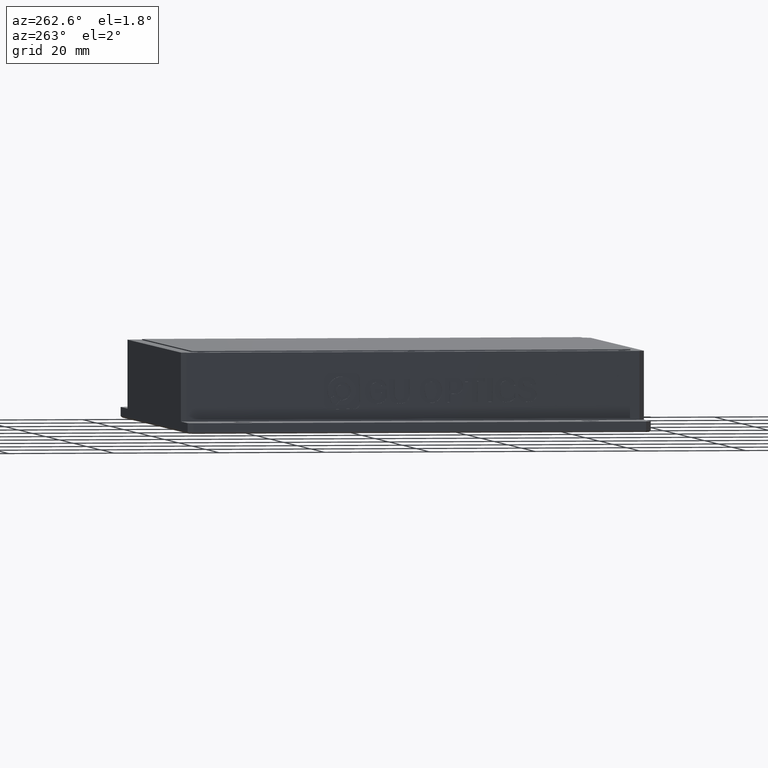
[diagram: clean part render]
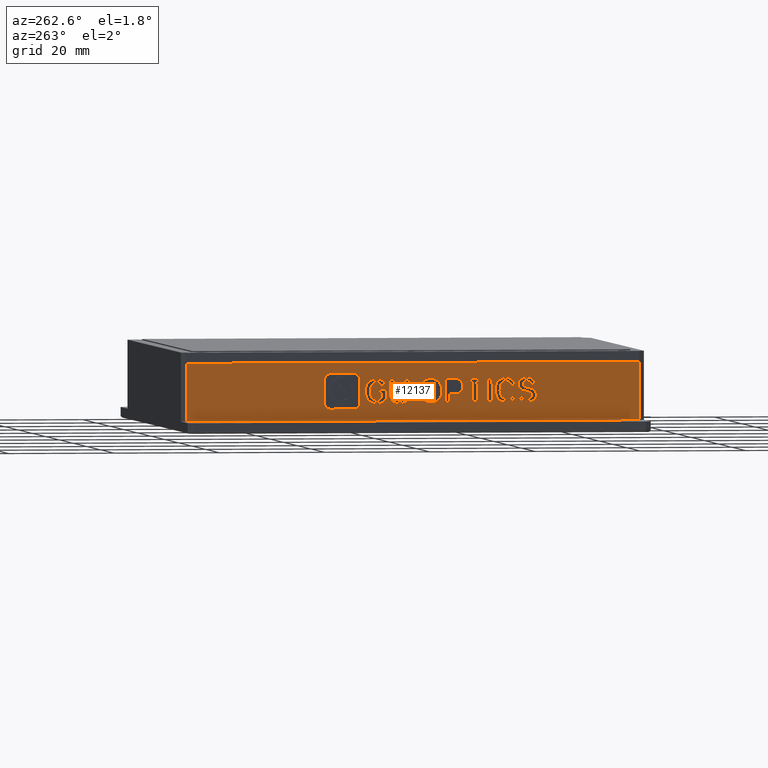
[diagram: same view with one face highlighted and labeled with its STEP entity id]
A machine part, auxiliary view. The second image highlights one B-rep face of the part: STEP entity #12137.
In plain terms, the highlighted planar face has unit normal (1, 0, 0).
Its self-contained STEP definition (entity closure, byte-faithful):
#28 = LINE ( 'NONE', #7429, #7509 ) ;
#66 = EDGE_CURVE ( 'NONE', #14311, #9478, #1452, .T. ) ;
#70 = DIRECTION ( 'NONE',  ( -0.0000000000000000000, 0.9999680015359180300, -0.007999744012287224700 ) ) ;
#138 = VERTEX_POINT ( 'NONE', #3566 ) ;
#154 = B_SPLINE_CURVE_WITH_KNOTS ( 'NONE', 3,
 ( #14165, #4656, #418, #10161 ),
 .UNSPECIFIED., .F., .F.,
 ( 4, 4 ),
 ( 12.59392528419546100, 14.69291283156137100 ),
 .UNSPECIFIED. ) ;
#184 = CARTESIAN_POINT ( 'NONE',  ( -22.94768995799924800, -1.639577004440180500, 3.889150275221808800 ) ) ;
#206 = VECTOR ( 'NONE', #15634, 1000.000000000000000 ) ;
#278 = VERTEX_POINT ( 'NONE', #12421 ) ;
#292 = CARTESIAN_POINT ( 'NONE',  ( -22.94768995799924800, -18.30164577376865900, 7.999318265200891200 ) ) ;
#305 = VERTEX_POINT ( 'NONE', #6980 ) ;
#374 = CARTESIAN_POINT ( 'NONE',  ( -22.94768995799924800, -20.74120048373965400, 5.716435448245434300 ) ) ;
#381 = CARTESIAN_POINT ( 'NONE',  ( -22.94768995799924800, -22.06281476387886200, 4.052536177297312700 ) ) ;
#418 = CARTESIAN_POINT ( 'NONE',  ( -22.94768995799924800, -23.19135528717914600, 3.705739162131031200 ) ) ;
#430 = VERTEX_POINT ( 'NONE', #15088 ) ;
#450 = CARTESIAN_POINT ( 'NONE',  ( -22.94768995799924800, 12.22207042947047700, 2.237126391415649600 ) ) ;
#476 = VERTEX_POINT ( 'NONE', #12991 ) ;
#502 = CARTESIAN_POINT ( 'NONE',  ( -22.94768995799924800, -25.93355536944080000, 3.476505935010713700 ) ) ;
#583 = ORIENTED_EDGE ( 'NONE', *, *, #12912, .F. ) ;
#591 = LINE ( 'NONE', #2695, #14385 ) ;
#639 = DIRECTION ( 'NONE',  ( -0.0000000000000000000, 0.9999680015359181400, -0.007999744012288772000 ) ) ;
#663 = B_SPLINE_CURVE_WITH_KNOTS ( 'NONE', 3,
 ( #14288, #4772, #7547, #17001 ),
 .UNSPECIFIED., .F., .F.,
 ( 4, 4 ),
 ( 10.44852967244660900, 13.93137289659548000 ),
 .UNSPECIFIED. ) ;
#670 = CARTESIAN_POINT ( 'NONE',  ( -22.94768995799924800, -19.25538161490458900, 3.506804154233905000 ) ) ;
#722 = CARTESIAN_POINT ( 'NONE',  ( -22.94768995799924800, -25.16435889085193300, 6.882089440505084500 ) ) ;
#750 = VECTOR ( 'NONE', #13528, 999.9999999999998900 ) ;
#761 = VERTEX_POINT ( 'NONE', #6722 ) ;
#782 = B_SPLINE_CURVE_WITH_KNOTS ( 'NONE', 3,
 ( #5970, #14084, #1775, #11438 ),
 .UNSPECIFIED., .F., .F.,
 ( 4, 4 ),
 ( 8.981940638558858900, 11.22742579819857100 ),
 .UNSPECIFIED. ) ;
#827 = ORIENTED_EDGE ( 'NONE', *, *, #2792, .F. ) ;
#833 = ORIENTED_EDGE ( 'NONE', *, *, #6875, .F. ) ;
#853 = CARTESIAN_POINT ( 'NONE',  ( -22.94768995799924800, -13.10137951332007100, 7.957716135117300900 ) ) ;
#862 = EDGE_CURVE ( 'NONE', #761, #2066, #4576, .T. ) ;
#904 = VERTEX_POINT ( 'NONE', #11830 ) ;
#906 = CARTESIAN_POINT ( 'NONE',  ( -22.94768995799924800, -13.60786519895299000, 6.496604858561774200 ) ) ;
#929 = EDGE_CURVE ( 'NONE', #11982, #4151, #1465, .T. ) ;
#934 = CARTESIAN_POINT ( 'NONE',  ( -22.94768995799924800, -48.20007636502477800, 10.99999999999545100 ) ) ;
#955 = VECTOR ( 'NONE', #5146, 1000.000000000000100 ) ;
#956 = CARTESIAN_POINT ( 'NONE',  ( -22.94768995799924800, -19.21938276684926100, 8.006660161145539700 ) ) ;
#989 = VERTEX_POINT ( 'NONE', #3172 ) ;
#1001 = CARTESIAN_POINT ( 'NONE',  ( -22.94768995799924800, -21.77666772790087200, 8.089911147778529700 ) ) ;
#1078 = CARTESIAN_POINT ( 'NONE',  ( -22.94768995799924800, 11.46808140681605400, 8.954538657982539000 ) ) ;
#1115 = EDGE_CURVE ( 'NONE', #7987, #15405, #15379, .T. ) ;
#1183 = CARTESIAN_POINT ( 'NONE',  ( -22.94768995799924800, -16.40470214833022000, 3.483998718501311500 ) ) ;
#1249 = VERTEX_POINT ( 'NONE', #12260 ) ;
#1274 = CARTESIAN_POINT ( 'NONE',  ( -22.94768995799924800, 4.089863074474693300, 3.292235736376156300 ) ) ;
#1349 = CARTESIAN_POINT ( 'NONE',  ( -22.94768995799924800, 3.938739462543481300, 5.560857733304914100 ) ) ;
#1368 = CARTESIAN_POINT ( 'NONE',  ( -22.94768995799924800, -27.50871426748807000, 6.733397064999246100 ) ) ;
#1403 = CARTESIAN_POINT ( 'NONE',  ( -22.94768995799924800, 1.743760809443585500, 4.552803349101332700 ) ) ;
#1419 = DIRECTION ( 'NONE',  ( -0.0000000000000000000, 0.007999744012310992100, 0.9999680015359179200 ) ) ;
#1423 = CARTESIAN_POINT ( 'NONE',  ( -22.94768995799924800, 0.9009166064194006300, 6.589843627267449700 ) ) ;
#1442 = CARTESIAN_POINT ( 'NONE',  ( -22.94768995799924800, -21.84038802528186800, 7.441562938396749900 ) ) ;
#1452 = B_SPLINE_CURVE_WITH_KNOTS ( 'NONE', 3,
 ( #4246, #4629, #4300, #4221 ),
 .UNSPECIFIED., .F., .F.,
 ( 4, 4 ),
 ( 18.70624679682389100, 20.57687147650628000 ),
 .UNSPECIFIED. ) ;
#1455 = VERTEX_POINT ( 'NONE', #1423 ) ;
#1465 = LINE ( 'NONE', #15157, #12043 ) ;
#1486 = DIRECTION ( 'NONE',  ( -0.0000000000000000000, 0.9999680015359180300, -0.007999744012288144100 ) ) ;
#1527 = EDGE_CURVE ( 'NONE', #5468, #989, #11130, .T. ) ;
#1569 = CARTESIAN_POINT ( 'NONE',  ( -22.94768995799924800, 0.2653558731883498600, 5.255350364981936200 ) ) ;
#1623 = CARTESIAN_POINT ( 'NONE',  ( -22.94768995799924800, -1.001712072362520600, 3.884047355765182900 ) ) ;
#1660 = VERTEX_POINT ( 'NONE', #6961 ) ;
#1669 = CARTESIAN_POINT ( 'NONE',  ( -22.94768995799924800, 1.829080415658211200, 7.901065162630054300 ) ) ;
#1711 = CARTESIAN_POINT ( 'NONE',  ( -22.94768995799924800, -7.619092747908499800, 3.329990234038454800 ) ) ;
#1738 = CARTESIAN_POINT ( 'NONE',  ( -22.94768995799924800, 5.977385331079119600, 8.582655682172934100 ) ) ;
#1775 = CARTESIAN_POINT ( 'NONE',  ( -22.94768995799924800, -2.303707077658539800, 3.866352627233525600 ) ) ;
#1785 = ORIENTED_EDGE ( 'NONE', *, *, #17214, .F. ) ;
#1805 = CARTESIAN_POINT ( 'NONE',  ( -22.94768995799924800, 6.343050524364456600, 2.284158550656499600 ) ) ;
#1818 = CARTESIAN_POINT ( 'NONE',  ( -22.94768995799924800, 4.876113252891968800, 5.574289645296999200 ) ) ;
#1912 = ORIENTED_EDGE ( 'NONE', *, *, #2107, .F. ) ;
#1918 = CARTESIAN_POINT ( 'NONE',  ( -22.94768995799924800, -27.09198233498444400, 3.485773350735066300 ) ) ;
#2018 = DIRECTION ( 'NONE',  ( -0.0000000000000000000, -0.007999744012269867000, -0.9999680015359182500 ) ) ;
#2025 = CARTESIAN_POINT ( 'NONE',  ( -22.94768995799924800, -23.55817751336104100, 5.069182390406715500 ) ) ;
#2026 = EDGE_CURVE ( 'NONE', #6962, #4714, #3153, .T. ) ;
#2051 = ORIENTED_EDGE ( 'NONE', *, *, #2026, .F. ) ;
#2066 = VERTEX_POINT ( 'NONE', #6754 ) ;
#2069 = B_SPLINE_CURVE_WITH_KNOTS ( 'NONE', 3,
 ( #13096, #14467, #6341, #15848 ),
 .UNSPECIFIED., .F., .F.,
 ( 4, 4 ),
 ( 13.34376593822674000, 15.01173668050508100 ),
 .UNSPECIFIED. ) ;
#2096 = EDGE_CURVE ( 'NONE', #4514, #4528, #11975, .T. ) ;
#2107 = EDGE_CURVE ( 'NONE', #13227, #9956, #11550, .T. ) ;
#2142 = ORIENTED_EDGE ( 'NONE', *, *, #9980, .F. ) ;
#2211 = CARTESIAN_POINT ( 'NONE',  ( -22.94768995799924800, 2.331720902539359900, 7.269116969289051200 ) ) ;
#2241 = CARTESIAN_POINT ( 'NONE',  ( -22.94768995799924800, -25.77932493426504800, 8.121932405429440400 ) ) ;
#2247 = ORIENTED_EDGE ( 'NONE', *, *, #3009, .F. ) ;
#2251 = VERTEX_POINT ( 'NONE', #1368 ) ;
#2281 = VERTEX_POINT ( 'NONE', #4512 ) ;
#2291 = CARTESIAN_POINT ( 'NONE',  ( -22.94768995799924800, -26.76859333226639500, 8.101735864039426400 ) ) ;
#2307 = DIRECTION ( 'NONE',  ( 0.0000000000000000000, 0.0000000000000000000, -1.000000000000000000 ) ) ;
#2330 = ORIENTED_EDGE ( 'NONE', *, *, #16014, .F. ) ;
#2381 = CARTESIAN_POINT ( 'NONE',  ( -22.94768995799924800, -24.61117545668958000, 4.414693057905502400 ) ) ;
#2465 = CARTESIAN_POINT ( 'NONE',  ( -22.94768995799924800, -9.636125337484150700, 4.197113703405398700 ) ) ;
#2474 = VECTOR ( 'NONE', #16984, 999.9999999999998900 ) ;
#2494 = DIRECTION ( 'NONE',  ( -0.0000000000000000000, -0.9999680015359181400, 0.007999744012291240500 ) ) ;
#2501 = VERTEX_POINT ( 'NONE', #17608 ) ;
#2521 = CARTESIAN_POINT ( 'NONE',  ( -22.94768995799924800, 4.876113252891968800, 5.574289645296999200 ) ) ;
#2551 = EDGE_CURVE ( 'NONE', #989, #15002, #10740, .T. ) ;
#2552 = DIRECTION ( 'NONE',  ( -0.0000000000000000000, -0.007999744012294092400, -0.9999680015359180300 ) ) ;
#2555 = FACE_BOUND ( 'NONE', #16971, .T. ) ;
#2565 = VECTOR ( 'NONE', #4089, 1000.000000000000000 ) ;
#2575 = CARTESIAN_POINT ( 'NONE',  ( -22.94768995799924800, -27.05863813426918800, 6.010965990968905700 ) ) ;
#2609 = EDGE_LOOP ( 'NONE', ( #12905, #12191, #5649, #9832, #827, #4078, #12177, #10864 ) ) ;
#2643 = CARTESIAN_POINT ( 'NONE',  ( -22.94768995799924800, -23.55817751336104100, 5.069182390406715500 ) ) ;
#2655 = EDGE_CURVE ( 'NONE', #14078, #10836, #6991, .T. ) ;
#2690 = ORIENTED_EDGE ( 'NONE', *, *, #14512, .F. ) ;
#2695 = CARTESIAN_POINT ( 'NONE',  ( -22.94768995799924800, 5.970923428638514000, 7.774917877092526000 ) ) ;
#2717 = B_SPLINE_CURVE_WITH_KNOTS ( 'NONE', 3,
 ( #9357, #7986, #16095, #1001 ),
 .UNSPECIFIED., .F., .F.,
 ( 4, 4 ),
 ( 18.89088792629318900, 20.98987547365909000 ),
 .UNSPECIFIED. ) ;
#2731 = LINE ( 'NONE', #14928, #6921 ) ;
#2734 = VERTEX_POINT ( 'NONE', #5395 ) ;
#2755 = DIRECTION ( 'NONE',  ( -0.0000000000000000000, 0.007999744012288218700, 0.9999680015359180300 ) ) ;
#2792 = EDGE_CURVE ( 'NONE', #11171, #15391, #591, .T. ) ;
#2831 = VERTEX_POINT ( 'NONE', #16598 ) ;
#2847 = CARTESIAN_POINT ( 'NONE',  ( -22.94768995799924800, -19.25538161490458900, 3.506804154233905000 ) ) ;
#2937 = CARTESIAN_POINT ( 'NONE',  ( -22.94768995799924800, -27.50871426748807000, 6.733397064999246100 ) ) ;
#2959 = ORIENTED_EDGE ( 'NONE', *, *, #12915, .F. ) ;
#2986 = B_SPLINE_CURVE_WITH_KNOTS ( 'NONE', 3,
 ( #381, #8757, #3222, #12813 ),
 .UNSPECIFIED., .F., .F.,
 ( 4, 4 ),
 ( 6.296962642097727600, 8.395950189463638600 ),
 .UNSPECIFIED. ) ;
#2987 = EDGE_CURVE ( 'NONE', #4050, #3069, #17305, .T. ) ;
#2995 = FACE_BOUND ( 'NONE', #10784, .T. ) ;
#3009 = EDGE_CURVE ( 'NONE', #9478, #9031, #4797, .T. ) ;
#3017 = CARTESIAN_POINT ( 'NONE',  ( -22.94768995799924800, 1.194391909789260800, 7.466593722064849300 ) ) ;
#3034 = ORIENTED_EDGE ( 'NONE', *, *, #14688, .F. ) ;
#3069 = VERTEX_POINT ( 'NONE', #17035 ) ;
#3087 = ORIENTED_EDGE ( 'NONE', *, *, #7294, .F. ) ;
#3130 = B_SPLINE_CURVE_WITH_KNOTS ( 'NONE', 3,
 ( #17129, #3421, #7688, #9052 ),
 .UNSPECIFIED., .F., .F.,
 ( 4, 4 ),
 ( 21.68361964961845000, 23.35159039189679900 ),
 .UNSPECIFIED. ) ;
#3148 = DIRECTION ( 'NONE',  ( -0.0000000000000000000, 0.007999744012294860900, 0.9999680015359180300 ) ) ;
#3153 = LINE ( 'NONE', #670, #13679 ) ;
#3171 = CARTESIAN_POINT ( 'NONE',  ( -22.94768995799924800, -22.72576207343064100, 6.611409838187356900 ) ) ;
#3172 = CARTESIAN_POINT ( 'NONE',  ( -22.94768995799924800, -26.68483711572139300, 4.759301230187772600 ) ) ;
#3175 = CARTESIAN_POINT ( 'NONE',  ( -22.94768995799924800, -1.624963302249680300, 3.282037198473183500 ) ) ;
#3185 = CARTESIAN_POINT ( 'NONE',  ( -22.94768995799924800, -3.501767820911990500, 7.880919241578040700 ) ) ;
#3198 = FACE_BOUND ( 'NONE', #2609, .T. ) ;
#3217 = CARTESIAN_POINT ( 'NONE',  ( -22.94768995799924500, -47.20007636502478500, -4.550179677487165000E-012 ) ) ;
#3222 = CARTESIAN_POINT ( 'NONE',  ( -22.94768995799924800, -20.77572501445081000, 4.656111184460862700 ) ) ;
#3241 = B_SPLINE_CURVE_WITH_KNOTS ( 'NONE', 3,
 ( #11471, #1805, #7438, #16885 ),
 .UNSPECIFIED., .F., .F.,
 ( 4, 4 ),
 ( 15.45386676080593000, 18.54464011296710900 ),
 .UNSPECIFIED. ) ;
#3262 = EDGE_CURVE ( 'NONE', #15789, #5800, #4632, .T. ) ;
#3316 = EDGE_CURVE ( 'NONE', #2251, #305, #3922, .T. ) ;
#3328 = CARTESIAN_POINT ( 'NONE',  ( -22.94768995799924800, -5.511490638988390400, 5.615528671802295000 ) ) ;
#3343 = CARTESIAN_POINT ( 'NONE',  ( -22.94768995799924800, 2.709524821660693700, 3.247361293481901600 ) ) ;
#3361 = CARTESIAN_POINT ( 'NONE',  ( -22.94768995799924800, 11.46808140681605400, 8.954538657982539000 ) ) ;
#3389 = LINE ( 'NONE', #12994, #6677 ) ;
#3415 = VECTOR ( 'NONE', #9350, 1000.000000000000000 ) ;
#3418 = CARTESIAN_POINT ( 'NONE',  ( -22.94768995799924800, -22.72576207343064100, 6.611409838187356900 ) ) ;
#3421 = CARTESIAN_POINT ( 'NONE',  ( -22.94768995799924800, -24.57780545907155900, 3.703079647450450800 ) ) ;
#3425 = VECTOR ( 'NONE', #6059, 1000.000000000000100 ) ;
#3426 = EDGE_CURVE ( 'NONE', #7782, #15647, #12067, .T. ) ;
#3456 = ORIENTED_EDGE ( 'NONE', *, *, #9397, .F. ) ;
#3461 = CARTESIAN_POINT ( 'NONE',  ( -22.94768995799924800, -23.12107576215641200, 4.367786013747370100 ) ) ;
#3566 = CARTESIAN_POINT ( 'NONE',  ( -22.94768995799924800, 7.204182370943215100, 8.988649850269517600 ) ) ;
#3569 = CARTESIAN_POINT ( 'NONE',  ( -22.94768995799924800, 0.8761350305691705300, 5.941183908113444500 ) ) ;
#3607 = EDGE_CURVE ( 'NONE', #9956, #14364, #17517, .T. ) ;
#3629 = VERTEX_POINT ( 'NONE', #14214 ) ;
#3710 = ORIENTED_EDGE ( 'NONE', *, *, #17789, .F. ) ;
#3744 = CARTESIAN_POINT ( 'NONE',  ( -22.94768995799924800, 5.970923428638514000, 7.774917877092526000 ) ) ;
#3823 = DIRECTION ( 'NONE',  ( -0.0000000000000000000, -0.9999680015359181400, 0.007999744012286412800 ) ) ;
#3835 = DIRECTION ( 'NONE',  ( -0.0000000000000000000, -0.007999744012300908200, -0.9999680015359180300 ) ) ;
#3882 = VERTEX_POINT ( 'NONE', #722 ) ;
#3922 = B_SPLINE_CURVE_WITH_KNOTS ( 'NONE', 3,
 ( #2937, #4200, #2291, #2241 ),
 .UNSPECIFIED., .F., .F.,
 ( 4, 4 ),
 ( 10.00782445367005900, 11.67579519594840000 ),
 .UNSPECIFIED. ) ;
#3950 = LINE ( 'NONE', #3361, #11267 ) ;
#3996 = CARTESIAN_POINT ( 'NONE',  ( -22.94768995799924800, 12.27575803629872600, 8.948077244946674100 ) ) ;
#3997 = LINE ( 'NONE', #11552, #206 ) ;
#4020 = LINE ( 'NONE', #4217, #4458 ) ;
#4050 = VERTEX_POINT ( 'NONE', #3217 ) ;
#4071 = CARTESIAN_POINT ( 'NONE',  ( -22.94768995799924800, -21.77666772790087200, 8.089911147778529700 ) ) ;
#4078 = ORIENTED_EDGE ( 'NONE', *, *, #17624, .F. ) ;
#4089 = DIRECTION ( 'NONE',  ( -0.0000000000000000000, 0.007999744012294746400, 0.9999680015359180300 ) ) ;
#4096 = VERTEX_POINT ( 'NONE', #17478 ) ;
#4114 = DIRECTION ( 'NONE',  ( -0.0000000000000000000, 0.007999744012314949000, 0.9999680015359179200 ) ) ;
#4134 = CARTESIAN_POINT ( 'NONE',  ( -22.94768995799924800, 2.694911119470077200, 3.854474370230526900 ) ) ;
#4151 = VERTEX_POINT ( 'NONE', #16297 ) ;
#4200 = CARTESIAN_POINT ( 'NONE',  ( -22.94768995799924800, -27.34521787679034700, 7.638993451440748000 ) ) ;
#4216 = CARTESIAN_POINT ( 'NONE',  ( -22.94768995799924800, -16.37372639535238200, 7.355967840727585900 ) ) ;
#4217 = CARTESIAN_POINT ( 'NONE',  ( -22.94768995799924800, 2.999356434163075000, 5.296271067438695500 ) ) ;
#4221 = CARTESIAN_POINT ( 'NONE',  ( -22.94768995799924800, 0.8627401103625497200, 4.266818882285846800 ) ) ;
#4236 = ORIENTED_EDGE ( 'NONE', *, *, #3607, .F. ) ;
#4246 = CARTESIAN_POINT ( 'NONE',  ( -22.94768995799924800, 2.709524821660693700, 3.247361293481901600 ) ) ;
#4270 = CARTESIAN_POINT ( 'NONE',  ( -22.94768995799924800, 3.528891896005859100, 7.189567108137567600 ) ) ;
#4297 = CARTESIAN_POINT ( 'NONE',  ( -22.94768995799924800, -0.3366698595925806700, 3.229869046302226800 ) ) ;
#4300 = CARTESIAN_POINT ( 'NONE',  ( -22.94768995799924800, 1.117906526022295300, 3.594988676884880900 ) ) ;
#4304 = ORIENTED_EDGE ( 'NONE', *, *, #7129, .F. ) ;
#4323 = LINE ( 'NONE', #15205, #7566 ) ;
#4368 = CARTESIAN_POINT ( 'NONE',  ( -22.94768995799924800, -25.80398482661082200, 7.473271712807380700 ) ) ;
#4372 = VERTEX_POINT ( 'NONE', #11533 ) ;
#4420 = AXIS2_PLACEMENT_3D ( 'NONE', #934, #10650, #2307 ) ;
#4428 = CARTESIAN_POINT ( 'NONE',  ( -22.94768995799924800, -25.36130023620666300, 7.469730236084146200 ) ) ;
#4450 = LINE ( 'NONE', #2643, #10909 ) ;
#4458 = VECTOR ( 'NONE', #13760, 1000.000000000000000 ) ;
#4474 = CARTESIAN_POINT ( 'NONE',  ( -22.94768995799924800, -0.6510883543377303800, 7.858113805845449400 ) ) ;
#4485 = CARTESIAN_POINT ( 'NONE',  ( -22.94768995799924800, -0.6798324318378398100, 4.265104118336438400 ) ) ;
#4494 = EDGE_CURVE ( 'NONE', #12267, #15388, #10032, .T. ) ;
#4512 = CARTESIAN_POINT ( 'NONE',  ( -22.94768995799924800, 2.694911119470077200, 3.854474370230526900 ) ) ;
#4514 = VERTEX_POINT ( 'NONE', #7323 ) ;
#4528 = VERTEX_POINT ( 'NONE', #6381 ) ;
#4576 = LINE ( 'NONE', #1403, #8663 ) ;
#4580 = VECTOR ( 'NONE', #13455, 1000.000000000000000 ) ;
#4599 = CARTESIAN_POINT ( 'NONE',  ( -22.94768995799924800, 6.396738131192705600, 8.995109404187523700 ) ) ;
#4628 = EDGE_CURVE ( 'NONE', #3882, #4096, #10985, .T. ) ;
#4629 = CARTESIAN_POINT ( 'NONE',  ( -22.94768995799924800, 1.733379746283446600, 3.255170454084919100 ) ) ;
#4632 = B_SPLINE_CURVE_WITH_KNOTS ( 'NONE', 3,
 ( #5626, #6251, #5811, #5512 ),
 .UNSPECIFIED., .F., .F.,
 ( 4, 4 ),
 ( 4.197975094731819300, 6.296962642097727600 ),
 .UNSPECIFIED. ) ;
#4644 = EDGE_CURVE ( 'NONE', #12240, #3629, #6305, .T. ) ;
#4656 = CARTESIAN_POINT ( 'NONE',  ( -22.94768995799924800, -22.62072195169673700, 3.450003267668762400 ) ) ;
#4681 = CARTESIAN_POINT ( 'NONE',  ( -22.94768995799924800, -25.14809321340038300, 7.272466672808718600 ) ) ;
#4714 = VERTEX_POINT ( 'NONE', #2847 ) ;
#4749 = ORIENTED_EDGE ( 'NONE', *, *, #929, .F. ) ;
#4760 = CARTESIAN_POINT ( 'NONE',  ( -22.94768995799924800, -11.21100679714044000, 3.442449155691790000 ) ) ;
#4772 = CARTESIAN_POINT ( 'NONE',  ( -22.94768995799924800, -9.586765640603740500, 7.127045149911501700 ) ) ;
#4783 = CARTESIAN_POINT ( 'NONE',  ( -22.94768995799924800, -27.64113220432984300, 4.829744297841238600 ) ) ;
#4797 = LINE ( 'NONE', #7948, #8458 ) ;
#4867 = CARTESIAN_POINT ( 'NONE',  ( -22.94768995799924800, -26.41324196671394400, 5.350069291839767000 ) ) ;
#4868 = ORIENTED_EDGE ( 'NONE', *, *, #13256, .F. ) ;
#4920 = EDGE_CURVE ( 'NONE', #2066, #2281, #8964, .T. ) ;
#4969 = CARTESIAN_POINT ( 'NONE',  ( -22.94768995799924800, 2.694911119470077200, 3.854474370230526900 ) ) ;
#5011 = EDGE_CURVE ( 'NONE', #4714, #5609, #10577, .T. ) ;
#5015 = CARTESIAN_POINT ( 'NONE',  ( -22.94768995799924800, 0.2861179995086293200, 7.850616155014678000 ) ) ;
#5069 = CARTESIAN_POINT ( 'NONE',  ( -22.94768995799924800, 0.2653558731883498600, 5.255350364981936200 ) ) ;
#5080 = ORIENTED_EDGE ( 'NONE', *, *, #66, .F. ) ;
#5084 = CARTESIAN_POINT ( 'NONE',  ( -22.94768995799924800, 2.200276920469491400, 3.844376099535537200 ) ) ;
#5088 = CARTESIAN_POINT ( 'NONE',  ( -22.94768995799924800, -25.16435889085193300, 6.882089440505084500 ) ) ;
#5123 = B_SPLINE_CURVE_WITH_KNOTS ( 'NONE', 3,
 ( #17410, #10804, #2465, #12131 ),
 .UNSPECIFIED., .F., .F.,
 ( 4, 4 ),
 ( 0.0000000000000000000, 3.482843224148870000 ),
 .UNSPECIFIED. ) ;
#5133 = DIRECTION ( 'NONE',  ( -0.0000000000000000000, -0.9999680015359181400, 0.007999744012289221300 ) ) ;
#5146 = DIRECTION ( 'NONE',  ( -0.0000000000000000000, -0.9999680015359180300, 0.007999744012288003600 ) ) ;
#5165 = ORIENTED_EDGE ( 'NONE', *, *, #4628, .F. ) ;
#5174 = CARTESIAN_POINT ( 'NONE',  ( -22.94768995799924800, -5.588080183835359100, 4.164729342176208600 ) ) ;
#5186 = VERTEX_POINT ( 'NONE', #6504 ) ;
#5248 = CARTESIAN_POINT ( 'NONE',  ( -22.94768995799924800, 11.41439379998780600, 2.243587804451515000 ) ) ;
#5263 = CARTESIAN_POINT ( 'NONE',  ( -22.94768995799924800, -2.564561467065740200, 7.873421590747271100 ) ) ;
#5307 = CARTESIAN_POINT ( 'NONE',  ( -22.94768995799924800, -25.87887761666713600, 5.443573330585898900 ) ) ;
#5353 = CARTESIAN_POINT ( 'NONE',  ( -22.94768995799924800, -15.46749579448430900, 3.476501067670540100 ) ) ;
#5395 = CARTESIAN_POINT ( 'NONE',  ( -22.94768995799924800, 1.877061681796417200, 6.582034466664431700 ) ) ;
#5396 = CARTESIAN_POINT ( 'NONE',  ( -22.94768995799924800, -3.522195074227109300, 5.327512577190973700 ) ) ;
#5425 = CARTESIAN_POINT ( 'NONE',  ( -22.94768995799924800, -18.33764462182398000, 3.499462258289256500 ) ) ;
#5427 = VERTEX_POINT ( 'NONE', #3171 ) ;
#5435 = DIRECTION ( 'NONE',  ( -0.0000000000000000000, -0.9999680015359180300, 0.007999744012288133700 ) ) ;
#5468 = VERTEX_POINT ( 'NONE', #10255 ) ;
#5470 = VERTEX_POINT ( 'NONE', #7514 ) ;
#5512 = CARTESIAN_POINT ( 'NONE',  ( -22.94768995799924800, -21.84038802528186800, 7.441562938396749900 ) ) ;
#5518 = CARTESIAN_POINT ( 'NONE',  ( -22.94768995799924800, -25.93355536944080000, 3.476505935010713700 ) ) ;
#5527 = EDGE_CURVE ( 'NONE', #14708, #16658, #3130, .T. ) ;
#5530 = CARTESIAN_POINT ( 'NONE',  ( -22.94768995799924800, -26.68193569423335600, 5.121978916196404400 ) ) ;
#5542 = CARTESIAN_POINT ( 'NONE',  ( -22.94768995799924800, -7.581921844335110600, 7.976353180709999400 ) ) ;
#5546 = ORIENTED_EDGE ( 'NONE', *, *, #5985, .F. ) ;
#5585 = LINE ( 'NONE', #4760, #7484 ) ;
#5609 = VERTEX_POINT ( 'NONE', #956 ) ;
#5614 = CARTESIAN_POINT ( 'NONE',  ( -22.94768995799924800, -24.12244826174526200, 6.120241672137076700 ) ) ;
#5626 = CARTESIAN_POINT ( 'NONE',  ( -22.94768995799924800, -20.74120048373965400, 5.716435448245434300 ) ) ;
#5637 = CARTESIAN_POINT ( 'NONE',  ( -22.94768995799924800, -26.68483711572139300, 4.759301230187772600 ) ) ;
#5649 = ORIENTED_EDGE ( 'NONE', *, *, #10444, .F. ) ;
#5656 = EDGE_CURVE ( 'NONE', #9897, #10139, #5123, .T. ) ;
#5659 = ORIENTED_EDGE ( 'NONE', *, *, #3316, .F. ) ;
#5759 = ORIENTED_EDGE ( 'NONE', *, *, #11647, .T. ) ;
#5800 = VERTEX_POINT ( 'NONE', #1442 ) ;
#5811 = CARTESIAN_POINT ( 'NONE',  ( -22.94768995799924800, -21.11148533573321700, 7.407621028306308200 ) ) ;
#5908 = CARTESIAN_POINT ( 'NONE',  ( -22.94768995799924800, -2.965986101402000100, 3.223097115893985200 ) ) ;
#5970 = CARTESIAN_POINT ( 'NONE',  ( -22.94768995799924800, -2.587165394914450600, 5.047930609663239900 ) ) ;
#5985 = EDGE_CURVE ( 'NONE', #9031, #278, #7946, .T. ) ;
#5998 = CARTESIAN_POINT ( 'NONE',  ( -22.94768995799924800, -25.77932493426504800, 8.121932405429440400 ) ) ;
#6024 = CARTESIAN_POINT ( 'NONE',  ( -22.94768995799924800, -3.522195074227109300, 5.327512577190973700 ) ) ;
#6059 = DIRECTION ( 'NONE',  ( -0.0000000000000000000, -0.9999680015359181400, 0.007999744012281980600 ) ) ;
#6077 = ORIENTED_EDGE ( 'NONE', *, *, #11712, .F. ) ;
#6124 = ORIENTED_EDGE ( 'NONE', *, *, #9753, .F. ) ;
#6129 = ORIENTED_EDGE ( 'NONE', *, *, #14853, .F. ) ;
#6239 = DIRECTION ( 'NONE',  ( -0.0000000000000000000, -0.9999680015359181400, 0.007999744012283359700 ) ) ;
#6243 = ORIENTED_EDGE ( 'NONE', *, *, #9233, .F. ) ;
#6251 = CARTESIAN_POINT ( 'NONE',  ( -22.94768995799924800, -20.74516979966568900, 6.832680583488553300 ) ) ;
#6299 = FACE_BOUND ( 'NONE', #11904, .T. ) ;
#6305 = LINE ( 'NONE', #4216, #2565 ) ;
#6339 = CARTESIAN_POINT ( 'NONE',  ( -22.94768995799924800, 3.004379529240566200, 5.924157952124076600 ) ) ;
#6341 = CARTESIAN_POINT ( 'NONE',  ( -22.94768995799924800, -26.46331910953836400, 7.213320215005396100 ) ) ;
#6366 = CARTESIAN_POINT ( 'NONE',  ( -22.94768995799924800, -25.14086667341842900, 6.532951721440753100 ) ) ;
#6378 = LINE ( 'NONE', #14731, #10037 ) ;
#6381 = CARTESIAN_POINT ( 'NONE',  ( -22.94768995799924800, -15.43652004150647100, 7.348470189896816300 ) ) ;
#6438 = CARTESIAN_POINT ( 'NONE',  ( -22.94768995799924800, -13.61282988594774900, 7.473217198597240000 ) ) ;
#6461 = VERTEX_POINT ( 'NONE', #292 ) ;
#6485 = FACE_BOUND ( 'NONE', #6826, .T. ) ;
#6504 = CARTESIAN_POINT ( 'NONE',  ( -22.94768995799924800, 4.876113252891968800, 5.574289645296999200 ) ) ;
#6517 = VERTEX_POINT ( 'NONE', #16923 ) ;
#6527 = EDGE_CURVE ( 'NONE', #14364, #13062, #5585, .T. ) ;
#6602 = EDGE_LOOP ( 'NONE', ( #15315, #10171, #2051, #10961 ) ) ;
#6677 = VECTOR ( 'NONE', #6239, 1000.000000000000100 ) ;
#6691 = EDGE_CURVE ( 'NONE', #2734, #1455, #11718, .T. ) ;
#6722 = CARTESIAN_POINT ( 'NONE',  ( -22.94768995799924800, 1.749788523536551300, 5.306267610723701000 ) ) ;
#6754 = CARTESIAN_POINT ( 'NONE',  ( -22.94768995799924800, 1.743760809443585500, 4.552803349101332700 ) ) ;
#6792 = CARTESIAN_POINT ( 'NONE',  ( -22.94768995799924800, 12.67991665718044700, 7.476548339599959000 ) ) ;
#6826 = EDGE_LOOP ( 'NONE', ( #11557, #14619, #17034, #16826, #14667, #9562, #5659, #13832, #8499, #5165, #8873, #11724, #11412, #17247 ) ) ;
#6875 = EDGE_CURVE ( 'NONE', #2281, #1249, #13750, .T. ) ;
#6887 = CARTESIAN_POINT ( 'NONE',  ( -22.94768995799924800, -5.564414202356940300, 7.122977026979561400 ) ) ;
#6897 = ORIENTED_EDGE ( 'NONE', *, *, #6527, .F. ) ;
#6921 = VECTOR ( 'NONE', #16256, 1000.000000000000100 ) ;
#6931 = EDGE_CURVE ( 'NONE', #4528, #14513, #12934, .T. ) ;
#6951 = VECTOR ( 'NONE', #15864, 1000.000000000000100 ) ;
#6961 = CARTESIAN_POINT ( 'NONE',  ( -22.94768995799924800, -26.61056831867768200, 6.726211897408766100 ) ) ;
#6962 = VERTEX_POINT ( 'NONE', #12537 ) ;
#6972 = ORIENTED_EDGE ( 'NONE', *, *, #2655, .F. ) ;
#6975 = VECTOR ( 'NONE', #16247, 1000.000000000000000 ) ;
#6977 = CARTESIAN_POINT ( 'NONE',  ( -22.94768995799924800, -25.87887761666713600, 5.443573330585898900 ) ) ;
#6980 = CARTESIAN_POINT ( 'NONE',  ( -22.94768995799924800, -25.77932493426504800, 8.121932405429440400 ) ) ;
#6991 = LINE ( 'NONE', #9758, #10182 ) ;
#7014 = LINE ( 'NONE', #12183, #17350 ) ;
#7094 = CARTESIAN_POINT ( 'NONE',  ( -22.94768995799924800, -15.46749579448430900, 3.476501067670540100 ) ) ;
#7129 = EDGE_CURVE ( 'NONE', #5800, #5427, #14498, .T. ) ;
#7133 = LINE ( 'NONE', #17340, #3415 ) ;
#7217 = LINE ( 'NONE', #12053, #14419 ) ;
#7232 = B_SPLINE_CURVE_WITH_KNOTS ( 'NONE', 3,
 ( #11409, #1738, #4599, #14110 ),
 .UNSPECIFIED., .F., .F.,
 ( 4, 4 ),
 ( 9.272320056483556200, 12.36309340864474000 ),
 .UNSPECIFIED. ) ;
#7286 = CARTESIAN_POINT ( 'NONE',  ( -22.94768995799924800, -13.60786519895299000, 6.496604858561774200 ) ) ;
#7294 = EDGE_CURVE ( 'NONE', #10984, #12386, #2717, .T. ) ;
#7323 = CARTESIAN_POINT ( 'NONE',  ( -22.94768995799924800, -14.05030155500737100, 7.337380442004822500 ) ) ;
#7367 = CARTESIAN_POINT ( 'NONE',  ( -22.94768995799924800, -24.24027099228948100, 7.683822141337160800 ) ) ;
#7395 = CARTESIAN_POINT ( 'NONE',  ( -22.94768995799924800, 2.805347174539861500, 7.893255028559004000 ) ) ;
#7404 = CARTESIAN_POINT ( 'NONE',  ( -22.94768995799924800, -12.09659500825722300, 5.019351534995607300 ) ) ;
#7429 = CARTESIAN_POINT ( 'NONE',  ( -22.94768995799924800, -17.75994488185159900, 7.367057588619572600 ) ) ;
#7438 = CARTESIAN_POINT ( 'NONE',  ( -22.94768995799924800, 5.930351702925520400, 2.703452162967892000 ) ) ;
#7484 = VECTOR ( 'NONE', #15646, 1000.000000000000100 ) ;
#7509 = VECTOR ( 'NONE', #16882, 1000.000000000000000 ) ;
#7514 = CARTESIAN_POINT ( 'NONE',  ( -22.94768995799924800, -17.75994488185159900, 7.367057588619572600 ) ) ;
#7533 = ORIENTED_EDGE ( 'NONE', *, *, #8166, .F. ) ;
#7547 = CARTESIAN_POINT ( 'NONE',  ( -22.94768995799924800, -8.884118357514861200, 7.903047143555981300 ) ) ;
#7566 = VECTOR ( 'NONE', #70, 1000.000000000000100 ) ;
#7574 = EDGE_CURVE ( 'NONE', #1455, #14096, #11316, .T. ) ;
#7597 = ORIENTED_EDGE ( 'NONE', *, *, #3262, .F. ) ;
#7599 = EDGE_CURVE ( 'NONE', #15391, #138, #7232, .T. ) ;
#7640 = CARTESIAN_POINT ( 'NONE',  ( -22.94768995799924800, 2.805347174539861500, 7.893255028559004000 ) ) ;
#7670 = CARTESIAN_POINT ( 'NONE',  ( -22.94768995799924800, -22.62254038999224900, 4.028903293732192000 ) ) ;
#7682 = VECTOR ( 'NONE', #5133, 999.9999999999998900 ) ;
#7688 = CARTESIAN_POINT ( 'NONE',  ( -22.94768995799924800, -25.17884409526134700, 3.428606440187572000 ) ) ;
#7725 = CARTESIAN_POINT ( 'NONE',  ( -22.94768995799924800, -13.64182073759565000, 5.492193191757352500 ) ) ;
#7732 = VERTEX_POINT ( 'NONE', #10286 ) ;
#7767 = DIRECTION ( 'NONE',  ( -0.0000000000000000000, 0.007999744012300906400, 0.9999680015359180300 ) ) ;
#7781 = CARTESIAN_POINT ( 'NONE',  ( -22.94768995799924800, -13.13806562981067900, 4.999572611394035500 ) ) ;
#7782 = VERTEX_POINT ( 'NONE', #5015 ) ;
#7798 = CARTESIAN_POINT ( 'NONE',  ( -22.94768995799924800, 1.883307939463691600, 4.077151776847096600 ) ) ;
#7946 = LINE ( 'NONE', #6339, #11543 ) ;
#7948 = CARTESIAN_POINT ( 'NONE',  ( -22.94768995799924800, 0.8761350305691705300, 5.941183908113444500 ) ) ;
#7957 = VECTOR ( 'NONE', #11857, 1000.000000000000100 ) ;
#7975 = CARTESIAN_POINT ( 'NONE',  ( -22.94768995799924800, -25.79221657149606600, 4.061440489443392600 ) ) ;
#7986 = CARTESIAN_POINT ( 'NONE',  ( -22.94768995799924800, -23.42724314180929900, 7.593594309273853100 ) ) ;
#7987 = VERTEX_POINT ( 'NONE', #9369 ) ;
#7988 = CARTESIAN_POINT ( 'NONE',  ( -22.94768995799924800, -7.619092747908499800, 3.329990234038454800 ) ) ;
#8100 = ORIENTED_EDGE ( 'NONE', *, *, #14990, .F. ) ;
#8166 = EDGE_CURVE ( 'NONE', #11359, #12603, #4323, .T. ) ;
#8234 = B_SPLINE_CURVE_WITH_KNOTS ( 'NONE', 3,
 ( #10785, #13461, #17510, #9468 ),
 .UNSPECIFIED., .F., .F.,
 ( 4, 4 ),
 ( 14.69291283156137100, 16.79190037892728100 ),
 .UNSPECIFIED. ) ;
#8240 = CARTESIAN_POINT ( 'NONE',  ( -22.94768995799924800, -19.83744833249671300, 7.216230397705815300 ) ) ;
#8247 = DIRECTION ( 'NONE',  ( -0.0000000000000000000, 0.007999744012287403300, 0.9999680015359180300 ) ) ;
#8261 = CARTESIAN_POINT ( 'NONE',  ( -22.94768995799924800, -12.09659500825722300, 5.019351534995607300 ) ) ;
#8281 = ORIENTED_EDGE ( 'NONE', *, *, #17446, .F. ) ;
#8356 = EDGE_CURVE ( 'NONE', #16658, #9105, #11601, .T. ) ;
#8367 = VERTEX_POINT ( 'NONE', #14296 ) ;
#8374 = ORIENTED_EDGE ( 'NONE', *, *, #5656, .F. ) ;
#8423 = EDGE_CURVE ( 'NONE', #4096, #1660, #2069, .T. ) ;
#8458 = VECTOR ( 'NONE', #8247, 1000.000000000000200 ) ;
#8499 = ORIENTED_EDGE ( 'NONE', *, *, #8423, .F. ) ;
#8571 = B_SPLINE_CURVE_WITH_KNOTS ( 'NONE', 3,
 ( #2025, #3461, #7670, #17113 ),
 .UNSPECIFIED., .F., .F.,
 ( 4, 4 ),
 ( 8.395950189463638600, 10.49493773682955000 ),
 .UNSPECIFIED. ) ;
#8663 = VECTOR ( 'NONE', #2018, 1000.000000000000000 ) ;
#8700 = VECTOR ( 'NONE', #16136, 1000.000000000000000 ) ;
#8757 = CARTESIAN_POINT ( 'NONE',  ( -22.94768995799924800, -21.21606111321267100, 4.101375068777422000 ) ) ;
#8799 = CARTESIAN_POINT ( 'NONE',  ( -22.94768995799924800, 1.749788523536551300, 5.306267610723701000 ) ) ;
#8833 = VERTEX_POINT ( 'NONE', #9993 ) ;
#8873 = ORIENTED_EDGE ( 'NONE', *, *, #14137, .F. ) ;
#8930 = CARTESIAN_POINT ( 'NONE',  ( -22.94768995799924800, -22.29597106719319300, 7.445207602732040200 ) ) ;
#8937 = EDGE_CURVE ( 'NONE', #5609, #6461, #17038, .T. ) ;
#8939 = CARTESIAN_POINT ( 'NONE',  ( -22.94768995799924800, -2.587165394914450600, 5.047930609663239900 ) ) ;
#8964 = B_SPLINE_CURVE_WITH_KNOTS ( 'NONE', 3,
 ( #13873, #7798, #5084, #4969 ),
 .UNSPECIFIED., .F., .F.,
 ( 4, 4 ),
 ( 7.482498718729557300, 9.353123398411947100 ),
 .UNSPECIFIED. ) ;
#8978 = CARTESIAN_POINT ( 'NONE',  ( -22.94768995799924800, -11.19844905944672100, 5.012166367405122000 ) ) ;
#9030 = CARTESIAN_POINT ( 'NONE',  ( -22.94768995799924800, 0.8627401103625497200, 4.266818882285846800 ) ) ;
#9031 = VERTEX_POINT ( 'NONE', #3569 ) ;
#9043 = VERTEX_POINT ( 'NONE', #14445 ) ;
#9052 = CARTESIAN_POINT ( 'NONE',  ( -22.94768995799924800, -25.93355536944080000, 3.476505935010713700 ) ) ;
#9105 = VERTEX_POINT ( 'NONE', #9328 ) ;
#9156 = CARTESIAN_POINT ( 'NONE',  ( -22.94768995799924800, -23.64349906651119700, 6.618751734131997500 ) ) ;
#9227 = CARTESIAN_POINT ( 'NONE',  ( -22.94768995799924800, 1.877061681796417200, 6.582034466664431700 ) ) ;
#9233 = EDGE_CURVE ( 'NONE', #15647, #8367, #9723, .T. ) ;
#9294 = VERTEX_POINT ( 'NONE', #184 ) ;
#9328 = CARTESIAN_POINT ( 'NONE',  ( -22.94768995799924800, -27.64113220432984300, 4.829744297841238600 ) ) ;
#9344 = EDGE_LOOP ( 'NONE', ( #1912, #10387, #9428, #8281, #3456, #6897, #4236 ) ) ;
#9346 = CARTESIAN_POINT ( 'NONE',  ( -22.94768995799924800, -25.16738345604670700, 4.070192940575509500 ) ) ;
#9350 = DIRECTION ( 'NONE',  ( -0.0000000000000000000, -0.0000000000000000000, 1.000000000000000000 ) ) ;
#9357 = CARTESIAN_POINT ( 'NONE',  ( -22.94768995799924800, -23.64349906651119700, 6.618751734131997500 ) ) ;
#9358 = EDGE_CURVE ( 'NONE', #3629, #5470, #28, .T. ) ;
#9369 = CARTESIAN_POINT ( 'NONE',  ( -22.94768995799924800, 12.64776291948794600, 3.457331128032961900 ) ) ;
#9397 = EDGE_CURVE ( 'NONE', #13062, #13541, #10712, .T. ) ;
#9416 = EDGE_CURVE ( 'NONE', #10139, #12800, #663, .T. ) ;
#9428 = ORIENTED_EDGE ( 'NONE', *, *, #4494, .F. ) ;
#9436 = B_SPLINE_CURVE_WITH_KNOTS ( 'NONE', 3,
 ( #5542, #15003, #6887, #16384 ),
 .UNSPECIFIED., .F., .F.,
 ( 4, 4 ),
 ( 6.965686448297741000, 10.44852967244660900 ),
 .UNSPECIFIED. ) ;
#9455 = CARTESIAN_POINT ( 'NONE',  ( -22.94768995799924800, -15.43652004150647100, 7.348470189896816300 ) ) ;
#9468 = CARTESIAN_POINT ( 'NONE',  ( -22.94768995799924800, -21.85289903650993500, 3.443860684347271200 ) ) ;
#9478 = VERTEX_POINT ( 'NONE', #9030 ) ;
#9521 = CARTESIAN_POINT ( 'NONE',  ( -22.94768995799924800, -27.63543936324203200, 5.541349433817935700 ) ) ;
#9562 = ORIENTED_EDGE ( 'NONE', *, *, #10861, .F. ) ;
#9576 = CARTESIAN_POINT ( 'NONE',  ( -22.94768995799924800, 0.2653558731883498600, 5.255350364981936200 ) ) ;
#9677 = CARTESIAN_POINT ( 'NONE',  ( -22.94768995799924800, 3.891082361261738200, 4.486583185797847800 ) ) ;
#9723 = B_SPLINE_CURVE_WITH_KNOTS ( 'NONE', 3,
 ( #9576, #16258, #4297, #13842 ),
 .UNSPECIFIED., .F., .F.,
 ( 4, 4 ),
 ( 20.20936643675743100, 22.45485159639714100 ),
 .UNSPECIFIED. ) ;
#9739 = CARTESIAN_POINT ( 'NONE',  ( -22.94768995799924800, 3.938739462543481300, 5.560857733304914100 ) ) ;
#9744 = VERTEX_POINT ( 'NONE', #12337 ) ;
#9753 = EDGE_CURVE ( 'NONE', #278, #476, #4020, .T. ) ;
#9756 = B_SPLINE_CURVE_WITH_KNOTS ( 'NONE', 3,
 ( #12167, #9521, #2575, #12219 ),
 .UNSPECIFIED., .F., .F.,
 ( 4, 4 ),
 ( 18.34767816506176900, 20.01564890734011100 ),
 .UNSPECIFIED. ) ;
#9758 = CARTESIAN_POINT ( 'NONE',  ( -22.94768995799924800, -0.6510883543377303800, 7.858113805845449400 ) ) ;
#9793 = CARTESIAN_POINT ( 'NONE',  ( -22.94768995799924800, 12.64130238692365500, 2.649764557495906600 ) ) ;
#9832 = ORIENTED_EDGE ( 'NONE', *, *, #7599, .F. ) ;
#9897 = VERTEX_POINT ( 'NONE', #1711 ) ;
#9907 = CARTESIAN_POINT ( 'NONE',  ( -22.94768995799924800, 12.64776291948794600, 3.457331128032961900 ) ) ;
#9954 = FACE_BOUND ( 'NONE', #12543, .T. ) ;
#9956 = VERTEX_POINT ( 'NONE', #10041 ) ;
#9962 = CARTESIAN_POINT ( 'NONE',  ( -22.94768995799924800, 11.41439379998780600, 2.243587804451515000 ) ) ;
#9980 = EDGE_CURVE ( 'NONE', #5427, #10984, #3997, .T. ) ;
#9993 = CARTESIAN_POINT ( 'NONE',  ( -22.94768995799924800, -21.85289903650993500, 3.443860684347271200 ) ) ;
#10032 = B_SPLINE_CURVE_WITH_KNOTS ( 'NONE', 3,
 ( #7404, #7781, #7725, #7286 ),
 .UNSPECIFIED., .F., .F.,
 ( 4, 4 ),
 ( 12.47790534418495900, 14.55755623488244900 ),
 .UNSPECIFIED. ) ;
#10037 = VECTOR ( 'NONE', #17480, 1000.000000000000100 ) ;
#10041 = CARTESIAN_POINT ( 'NONE',  ( -22.94768995799924800, -10.25739263950912900, 7.934964240126817000 ) ) ;
#10137 = CARTESIAN_POINT ( 'NONE',  ( -22.94768995799924800, 4.835996635034746300, 7.039773740280431900 ) ) ;
#10139 = VERTEX_POINT ( 'NONE', #16254 ) ;
#10143 = CARTESIAN_POINT ( 'NONE',  ( -22.94768995799924800, 7.150494764114967900, 2.277698996738493500 ) ) ;
#10161 = CARTESIAN_POINT ( 'NONE',  ( -22.94768995799924800, -23.56504240996695600, 4.211070314670080500 ) ) ;
#10171 = ORIENTED_EDGE ( 'NONE', *, *, #5011, .F. ) ;
#10182 = VECTOR ( 'NONE', #7767, 1000.000000000000100 ) ;
#10255 = CARTESIAN_POINT ( 'NONE',  ( -22.94768995799924800, -25.87887761666713600, 5.443573330585898900 ) ) ;
#10286 = CARTESIAN_POINT ( 'NONE',  ( -22.94768995799924800, -22.06281476387886200, 4.052536177297312700 ) ) ;
#10307 = CARTESIAN_POINT ( 'NONE',  ( -22.94768995799924800, -21.84038802528186800, 7.441562938396749900 ) ) ;
#10333 = CARTESIAN_POINT ( 'NONE',  ( -22.94768995799924800, -10.25739263950912900, 7.934964240126817000 ) ) ;
#10361 = ORIENTED_EDGE ( 'NONE', *, *, #15843, .F. ) ;
#10387 = ORIENTED_EDGE ( 'NONE', *, *, #12517, .F. ) ;
#10411 = EDGE_CURVE ( 'NONE', #14096, #5186, #11728, .T. ) ;
#10435 = B_SPLINE_CURVE_WITH_KNOTS ( 'NONE', 3,
 ( #13731, #5614, #15084, #6977 ),
 .UNSPECIFIED., .F., .F.,
 ( 4, 4 ),
 ( 6.671882969113370100, 8.339853711391713300 ),
 .UNSPECIFIED. ) ;
#10444 = EDGE_CURVE ( 'NONE', #138, #12624, #3950, .T. ) ;
#10459 = ORIENTED_EDGE ( 'NONE', *, *, #9358, .F. ) ;
#10559 = ORIENTED_EDGE ( 'NONE', *, *, #12662, .F. ) ;
#10574 = CARTESIAN_POINT ( 'NONE',  ( -22.94768995799924800, -12.07315389789562200, 7.949490330193910400 ) ) ;
#10577 = LINE ( 'NONE', #17121, #6951 ) ;
#10624 = VECTOR ( 'NONE', #10895, 999.9999999999998900 ) ;
#10650 = DIRECTION ( 'NONE',  ( 1.000000000000000000, 0.0000000000000000000, 0.0000000000000000000 ) ) ;
#10668 = EDGE_CURVE ( 'NONE', #14578, #6517, #4450, .T. ) ;
#10673 = ORIENTED_EDGE ( 'NONE', *, *, #4920, .F. ) ;
#10712 = LINE ( 'NONE', #15598, #14269 ) ;
#10740 = B_SPLINE_CURVE_WITH_KNOTS ( 'NONE', 3,
 ( #13881, #13652, #12448, #12502 ),
 .UNSPECIFIED., .F., .F.,
 ( 4, 4 ),
 ( 3.335941484556685000, 5.003912226835027800 ),
 .UNSPECIFIED. ) ;
#10784 = EDGE_LOOP ( 'NONE', ( #4749, #8100, #10459, #11620, #12778, #11666, #14496, #10559 ) ) ;
#10785 = CARTESIAN_POINT ( 'NONE',  ( -22.94768995799924800, -19.78418989612254100, 5.750641168174240600 ) ) ;
#10804 = CARTESIAN_POINT ( 'NONE',  ( -22.94768995799924800, -8.946111722596128900, 3.424329995095433800 ) ) ;
#10830 = CARTESIAN_POINT ( 'NONE',  ( -22.94768995799924800, 11.46808140681605400, 8.954538657982539000 ) ) ;
#10836 = VERTEX_POINT ( 'NONE', #4474 ) ;
#10861 = EDGE_CURVE ( 'NONE', #305, #904, #13460, .T. ) ;
#10864 = ORIENTED_EDGE ( 'NONE', *, *, #1115, .F. ) ;
#10895 = DIRECTION ( 'NONE',  ( -0.0000000000000000000, -0.9999680015359181400, 0.007999744012291981300 ) ) ;
#10902 = CARTESIAN_POINT ( 'NONE',  ( -22.94768995799924800, -16.40470214833022000, 3.483998718501311500 ) ) ;
#10909 = VECTOR ( 'NONE', #4114, 1000.000000000000000 ) ;
#10937 = CARTESIAN_POINT ( 'NONE',  ( -22.94768995799924800, -20.50148592625112400, 7.995986084105866500 ) ) ;
#10961 = ORIENTED_EDGE ( 'NONE', *, *, #16082, .F. ) ;
#10982 = CARTESIAN_POINT ( 'NONE',  ( -22.94768995799924800, 2.709524821660693700, 3.247361293481901600 ) ) ;
#10984 = VERTEX_POINT ( 'NONE', #9156 ) ;
#10985 = B_SPLINE_CURVE_WITH_KNOTS ( 'NONE', 3,
 ( #5088, #4681, #4428, #4368 ),
 .UNSPECIFIED., .F., .F.,
 ( 4, 4 ),
 ( 15.01173668050508100, 16.67970742278343000 ),
 .UNSPECIFIED. ) ;
#11013 = EDGE_CURVE ( 'NONE', #12603, #13002, #7217, .T. ) ;
#11114 = CARTESIAN_POINT ( 'NONE',  ( -22.94768995799924800, 3.908160884525215800, 6.621398593728030400 ) ) ;
#11130 = B_SPLINE_CURVE_WITH_KNOTS ( 'NONE', 3,
 ( #5307, #4867, #5530, #5637 ),
 .UNSPECIFIED., .F., .F.,
 ( 4, 4 ),
 ( 5.003912226835027800, 6.671882969113370100 ),
 .UNSPECIFIED. ) ;
#11141 = ORIENTED_EDGE ( 'NONE', *, *, #6691, .F. ) ;
#11171 = VERTEX_POINT ( 'NONE', #13648 ) ;
#11187 = CARTESIAN_POINT ( 'NONE',  ( -22.94768995799924800, 0.2861179995086293200, 7.850616155014678000 ) ) ;
#11267 = VECTOR ( 'NONE', #12931, 1000.000000000000000 ) ;
#11308 = CARTESIAN_POINT ( 'NONE',  ( -22.94768995799924800, -1.639577004440180500, 3.889150275221808800 ) ) ;
#11316 = B_SPLINE_CURVE_WITH_KNOTS ( 'NONE', 3,
 ( #16708, #3017, #1669, #11365 ),
 .UNSPECIFIED., .F., .F.,
 ( 4, 4 ),
 ( 24.31812083587106000, 26.18874551555345000 ),
 .UNSPECIFIED. ) ;
#11359 = VERTEX_POINT ( 'NONE', #3185 ) ;
#11361 = VECTOR ( 'NONE', #11690, 1000.000000000000100 ) ;
#11365 = CARTESIAN_POINT ( 'NONE',  ( -22.94768995799924800, 2.805347174539861500, 7.893255028559004000 ) ) ;
#11409 = CARTESIAN_POINT ( 'NONE',  ( -22.94768995799924800, 5.970923428638514000, 7.774917877092526000 ) ) ;
#11412 = ORIENTED_EDGE ( 'NONE', *, *, #8356, .F. ) ;
#11430 = LINE ( 'NONE', #12110, #4580 ) ;
#11438 = CARTESIAN_POINT ( 'NONE',  ( -22.94768995799924800, -1.639577004440180500, 3.889150275221808800 ) ) ;
#11471 = CARTESIAN_POINT ( 'NONE',  ( -22.94768995799924800, 7.150494764114967900, 2.277698996738493500 ) ) ;
#11510 = CARTESIAN_POINT ( 'NONE',  ( -22.94768995799924800, -21.77666772790087200, 8.089911147778529700 ) ) ;
#11533 = CARTESIAN_POINT ( 'NONE',  ( -22.94768995799924800, -24.12420342461848600, 5.094641500011653600 ) ) ;
#11543 = VECTOR ( 'NONE', #15844, 1000.000000000000100 ) ;
#11550 = LINE ( 'NONE', #10333, #7957 ) ;
#11552 = CARTESIAN_POINT ( 'NONE',  ( -22.94768995799924800, -23.64349906651119700, 6.618751734131997500 ) ) ;
#11557 = ORIENTED_EDGE ( 'NONE', *, *, #16428, .F. ) ;
#11601 = B_SPLINE_CURVE_WITH_KNOTS ( 'NONE', 3,
 ( #502, #1918, #12917, #4783 ),
 .UNSPECIFIED., .F., .F.,
 ( 4, 4 ),
 ( 20.01564890734011100, 21.68361964961845000 ),
 .UNSPECIFIED. ) ;
#11620 = ORIENTED_EDGE ( 'NONE', *, *, #4644, .F. ) ;
#11647 = EDGE_CURVE ( 'NONE', #430, #2831, #17737, .T. ) ;
#11656 = CARTESIAN_POINT ( 'NONE',  ( -22.94768995799924800, -22.59097568885123800, 7.168286123352864100 ) ) ;
#11666 = ORIENTED_EDGE ( 'NONE', *, *, #6931, .F. ) ;
#11690 = DIRECTION ( 'NONE',  ( -0.0000000000000000000, -0.007999744012259724100, -0.9999680015359182500 ) ) ;
#11695 = EDGE_LOOP ( 'NONE', ( #2142, #4304, #7597, #1785, #15207, #12574, #3034, #2690, #6077, #3087 ) ) ;
#11712 = EDGE_CURVE ( 'NONE', #12386, #9043, #11912, .T. ) ;
#11718 = LINE ( 'NONE', #11905, #7682 ) ;
#11724 = ORIENTED_EDGE ( 'NONE', *, *, #12231, .F. ) ;
#11728 = B_SPLINE_CURVE_WITH_KNOTS ( 'NONE', 3,
 ( #7395, #15452, #10137, #1818 ),
 .UNSPECIFIED., .F., .F.,
 ( 4, 4 ),
 ( 22.44749615618867000, 24.31812083587106000 ),
 .UNSPECIFIED. ) ;
#11785 = ORIENTED_EDGE ( 'NONE', *, *, #14583, .F. ) ;
#11830 = CARTESIAN_POINT ( 'NONE',  ( -22.94768995799924800, -24.20768317624020900, 6.874436034788189400 ) ) ;
#11857 = DIRECTION ( 'NONE',  ( -0.0000000000000000000, 0.9999680015359180300, -0.007999744012288216900 ) ) ;
#11904 = EDGE_LOOP ( 'NONE', ( #6972, #12346, #583, #13969, #7533, #17580, #2959, #6243, #13385, #16485 ) ) ;
#11905 = CARTESIAN_POINT ( 'NONE',  ( -22.94768995799924800, 0.9009166064194006300, 6.589843627267449700 ) ) ;
#11912 = B_SPLINE_CURVE_WITH_KNOTS ( 'NONE', 3,
 ( #4071, #10937, #8240, #17663 ),
 .UNSPECIFIED., .F., .F.,
 ( 4, 4 ),
 ( 16.79190037892728100, 18.89088792629318900 ),
 .UNSPECIFIED. ) ;
#11975 = LINE ( 'NONE', #9455, #955 ) ;
#11982 = VERTEX_POINT ( 'NONE', #14231 ) ;
#12043 = VECTOR ( 'NONE', #639, 999.9999999999998900 ) ;
#12053 = CARTESIAN_POINT ( 'NONE',  ( -22.94768995799924800, -2.587165394914450600, 5.047930609663239900 ) ) ;
#12058 = CARTESIAN_POINT ( 'NONE',  ( -22.94768995799924800, -24.12420342461848600, 5.094641500011653600 ) ) ;
#12067 = LINE ( 'NONE', #5069, #12472 ) ;
#12089 = VECTOR ( 'NONE', #1419, 1000.000000000000000 ) ;
#12110 = CARTESIAN_POINT ( 'NONE',  ( -22.94768995799924800, -3.501767820911990500, 7.880919241578040700 ) ) ;
#12131 = CARTESIAN_POINT ( 'NONE',  ( -22.94768995799924800, -9.689858826260600500, 5.648955617300466700 ) ) ;
#12137 = ADVANCED_FACE ( 'NONE', ( #6485, #3198, #2995, #17105, #13536, #17278, #9954, #6299, #2555, #16695 ), #13266, .F. ) ;
#12167 = CARTESIAN_POINT ( 'NONE',  ( -22.94768995799924800, -27.64113220432984300, 4.829744297841238600 ) ) ;
#12177 = ORIENTED_EDGE ( 'NONE', *, *, #14823, .F. ) ;
#12183 = CARTESIAN_POINT ( 'NONE',  ( -22.94768995799924800, -12.09659500825722300, 5.019351534995607300 ) ) ;
#12189 = CARTESIAN_POINT ( 'NONE',  ( -22.94768995799924800, -12.07315389789562200, 7.949490330193910400 ) ) ;
#12191 = ORIENTED_EDGE ( 'NONE', *, *, #13230, .F. ) ;
#12200 = ORIENTED_EDGE ( 'NONE', *, *, #10411, .F. ) ;
#12213 = EDGE_CURVE ( 'NONE', #12639, #11359, #11430, .T. ) ;
#12219 = CARTESIAN_POINT ( 'NONE',  ( -22.94768995799924800, -25.91145375109987700, 6.239208227626214400 ) ) ;
#12231 = EDGE_CURVE ( 'NONE', #9105, #9744, #9756, .T. ) ;
#12240 = VERTEX_POINT ( 'NONE', #10902 ) ;
#12250 = ORIENTED_EDGE ( 'NONE', *, *, #17383, .F. ) ;
#12260 = CARTESIAN_POINT ( 'NONE',  ( -22.94768995799924800, 3.938739462543481300, 5.560857733304914100 ) ) ;
#12267 = VERTEX_POINT ( 'NONE', #8261 ) ;
#12293 = ORIENTED_EDGE ( 'NONE', *, *, #9416, .F. ) ;
#12323 = VECTOR ( 'NONE', #1486, 1000.000000000000100 ) ;
#12337 = CARTESIAN_POINT ( 'NONE',  ( -22.94768995799924800, -25.91145375109987700, 6.239208227626214400 ) ) ;
#12346 = ORIENTED_EDGE ( 'NONE', *, *, #17542, .F. ) ;
#12386 = VERTEX_POINT ( 'NONE', #11510 ) ;
#12421 = CARTESIAN_POINT ( 'NONE',  ( -22.94768995799924800, 3.004379529240566200, 5.924157952124076600 ) ) ;
#12438 = CARTESIAN_POINT ( 'NONE',  ( -22.94768995799924800, -25.79221657149606600, 4.061440489443392600 ) ) ;
#12448 = CARTESIAN_POINT ( 'NONE',  ( -22.94768995799924800, -26.37800096352611900, 4.066126764579628600 ) ) ;
#12472 = VECTOR ( 'NONE', #2552, 1000.000000000000100 ) ;
#12486 = CARTESIAN_POINT ( 'NONE',  ( -22.94768995799924800, -7.581921844335110600, 7.976353180709999400 ) ) ;
#12492 = LINE ( 'NONE', #16476, #12089 ) ;
#12502 = CARTESIAN_POINT ( 'NONE',  ( -22.94768995799924800, -25.79221657149606600, 4.061440489443392600 ) ) ;
#12517 = EDGE_CURVE ( 'NONE', #15388, #13227, #13551, .T. ) ;
#12537 = CARTESIAN_POINT ( 'NONE',  ( -22.94768995799924800, -18.33764462182398000, 3.499462258289256500 ) ) ;
#12543 = EDGE_LOOP ( 'NONE', ( #12250, #11785, #12293, #8374 ) ) ;
#12574 = ORIENTED_EDGE ( 'NONE', *, *, #10668, .F. ) ;
#12603 = VERTEX_POINT ( 'NONE', #5263 ) ;
#12624 = VERTEX_POINT ( 'NONE', #10830 ) ;
#12639 = VERTEX_POINT ( 'NONE', #5396 ) ;
#12662 = EDGE_CURVE ( 'NONE', #4151, #4514, #2731, .T. ) ;
#12715 = LINE ( 'NONE', #14745, #8700 ) ;
#12745 = CARTESIAN_POINT ( 'NONE',  ( -22.94768995799924800, -24.76411020590615300, 8.099755343315536000 ) ) ;
#12778 = ORIENTED_EDGE ( 'NONE', *, *, #14909, .F. ) ;
#12800 = VERTEX_POINT ( 'NONE', #12486 ) ;
#12813 = CARTESIAN_POINT ( 'NONE',  ( -22.94768995799924800, -20.74120048373965400, 5.716435448245434300 ) ) ;
#12905 = ORIENTED_EDGE ( 'NONE', *, *, #16959, .F. ) ;
#12912 = EDGE_CURVE ( 'NONE', #13002, #9294, #782, .T. ) ;
#12915 = EDGE_CURVE ( 'NONE', #8367, #12639, #16869, .T. ) ;
#12917 = CARTESIAN_POINT ( 'NONE',  ( -22.94768995799924800, -27.66105130732921700, 3.937054637385187600 ) ) ;
#12931 = DIRECTION ( 'NONE',  ( -0.0000000000000000000, 0.9999680015359181400, -0.007999744012286209800 ) ) ;
#12934 = LINE ( 'NONE', #7094, #16160 ) ;
#12991 = CARTESIAN_POINT ( 'NONE',  ( -22.94768995799924800, 2.999356434163075000, 5.296271067438695500 ) ) ;
#12994 = CARTESIAN_POINT ( 'NONE',  ( -22.94768995799924800, -27.50871426748807000, 6.733397064999246100 ) ) ;
#13002 = VERTEX_POINT ( 'NONE', #8939 ) ;
#13015 = CARTESIAN_POINT ( 'NONE',  ( -22.94768995799924800, -24.13056601171661300, 4.299318112743542000 ) ) ;
#13026 = EDGE_CURVE ( 'NONE', #1660, #2251, #3389, .T. ) ;
#13062 = VERTEX_POINT ( 'NONE', #14427 ) ;
#13096 = CARTESIAN_POINT ( 'NONE',  ( -22.94768995799924800, -25.80398482661082200, 7.473271712807380700 ) ) ;
#13128 = CARTESIAN_POINT ( 'NONE',  ( -22.94768995799924800, -25.91145375109987700, 6.239208227626214400 ) ) ;
#13227 = VERTEX_POINT ( 'NONE', #12189 ) ;
#13230 = EDGE_CURVE ( 'NONE', #12624, #17271, #16800, .T. ) ;
#13256 = EDGE_CURVE ( 'NONE', #5186, #14311, #16616, .T. ) ;
#13266 = PLANE ( 'NONE',  #4420 ) ;
#13359 = B_SPLINE_CURVE_WITH_KNOTS ( 'NONE', 3,
 ( #11308, #1623, #4485, #14007 ),
 .UNSPECIFIED., .F., .F.,
 ( 4, 4 ),
 ( 6.736455478919142900, 8.981940638558858900 ),
 .UNSPECIFIED. ) ;
#13382 = CARTESIAN_POINT ( 'NONE',  ( -22.94768995799924800, 7.150494764114967900, 2.277698996738493500 ) ) ;
#13385 = ORIENTED_EDGE ( 'NONE', *, *, #3426, .F. ) ;
#13455 = DIRECTION ( 'NONE',  ( -0.0000000000000000000, 0.007999744012296073500, 0.9999680015359180300 ) ) ;
#13460 = B_SPLINE_CURVE_WITH_KNOTS ( 'NONE', 3,
 ( #5998, #12745, #7367, #16822 ),
 .UNSPECIFIED., .F., .F.,
 ( 4, 4 ),
 ( 8.339853711391713300, 10.00782445367005900 ),
 .UNSPECIFIED. ) ;
#13461 = CARTESIAN_POINT ( 'NONE',  ( -22.94768995799924800, -19.86100187841669000, 4.272037157704985200 ) ) ;
#13489 = B_SPLINE_CURVE_WITH_KNOTS ( 'NONE', 3,
 ( #14712, #5174, #16096, #7988 ),
 .UNSPECIFIED., .F., .F.,
 ( 4, 4 ),
 ( 3.482843224148870000, 6.965686448297741000 ),
 .UNSPECIFIED. ) ;
#13507 = ORIENTED_EDGE ( 'NONE', *, *, #7574, .F. ) ;
#13528 = DIRECTION ( 'NONE',  ( -0.0000000000000000000, -0.007999744012293945000, -0.9999680015359181400 ) ) ;
#13536 = FACE_BOUND ( 'NONE', #11695, .T. ) ;
#13540 = ORIENTED_EDGE ( 'NONE', *, *, #862, .F. ) ;
#13541 = VERTEX_POINT ( 'NONE', #8978 ) ;
#13551 = B_SPLINE_CURVE_WITH_KNOTS ( 'NONE', 3,
 ( #15946, #6438, #853, #10574 ),
 .UNSPECIFIED., .F., .F.,
 ( 4, 4 ),
 ( 10.39825445348746900, 12.47790534418495900 ),
 .UNSPECIFIED. ) ;
#13648 = CARTESIAN_POINT ( 'NONE',  ( -22.94768995799924800, 5.936812235489809600, 3.511018733504947000 ) ) ;
#13652 = CARTESIAN_POINT ( 'NONE',  ( -22.94768995799924800, -26.67537890026176200, 4.298745713537030600 ) ) ;
#13653 = CARTESIAN_POINT ( 'NONE',  ( -22.94768995799924800, -23.56504240996695600, 4.211070314670080500 ) ) ;
#13679 = VECTOR ( 'NONE', #2494, 999.9999999999998900 ) ;
#13731 = CARTESIAN_POINT ( 'NONE',  ( -22.94768995799924800, -24.20768317624020900, 6.874436034788189400 ) ) ;
#13750 = B_SPLINE_CURVE_WITH_KNOTS ( 'NONE', 3,
 ( #4134, #17661, #9677, #1349 ),
 .UNSPECIFIED., .F., .F.,
 ( 4, 4 ),
 ( 5.611874039047168400, 7.482498718729557300 ),
 .UNSPECIFIED. ) ;
#13760 = DIRECTION ( 'NONE',  ( -0.0000000000000000000, -0.007999744012299765000, -0.9999680015359180300 ) ) ;
#13813 = CARTESIAN_POINT ( 'NONE',  ( -22.94768995799924800, 2.800324079462370700, 7.265368143873666400 ) ) ;
#13832 = ORIENTED_EDGE ( 'NONE', *, *, #13026, .F. ) ;
#13842 = CARTESIAN_POINT ( 'NONE',  ( -22.94768995799924800, -1.624963302249680300, 3.282037198473183500 ) ) ;
#13858 = DIRECTION ( 'NONE',  ( -0.0000000000000000000, -0.007999744012294743000, -0.9999680015359180300 ) ) ;
#13873 = CARTESIAN_POINT ( 'NONE',  ( -22.94768995799924800, 1.743760809443585500, 4.552803349101332700 ) ) ;
#13881 = CARTESIAN_POINT ( 'NONE',  ( -22.94768995799924800, -26.68483711572139300, 4.759301230187772600 ) ) ;
#13959 = VECTOR ( 'NONE', #13972, 1000.000000000000100 ) ;
#13969 = ORIENTED_EDGE ( 'NONE', *, *, #11013, .F. ) ;
#13972 = DIRECTION ( 'NONE',  ( -0.0000000000000000000, -0.007999744012295483700, -0.9999680015359180300 ) ) ;
#14007 = CARTESIAN_POINT ( 'NONE',  ( -22.94768995799924800, -0.6736922821864463900, 5.032622824761417300 ) ) ;
#14078 = VERTEX_POINT ( 'NONE', #16976 ) ;
#14081 = CARTESIAN_POINT ( 'NONE',  ( -22.94768995799924800, -10.29339148756446000, 3.435108233215181400 ) ) ;
#14084 = CARTESIAN_POINT ( 'NONE',  ( -22.94768995799924800, -2.619446568531710500, 4.252814571087242300 ) ) ;
#14096 = VERTEX_POINT ( 'NONE', #7640 ) ;
#14097 = DIRECTION ( 'NONE',  ( -0.0000000000000000000, 1.000000000000000000, 0.0000000000000000000 ) ) ;
#14110 = CARTESIAN_POINT ( 'NONE',  ( -22.94768995799924800, 7.204182370943215100, 8.988649850269517600 ) ) ;
#14137 = EDGE_CURVE ( 'NONE', #9744, #3882, #14428, .T. ) ;
#14139 = CARTESIAN_POINT ( 'NONE',  ( -22.94768995799924800, -3.598559747957670800, 3.904822137169944100 ) ) ;
#14165 = CARTESIAN_POINT ( 'NONE',  ( -22.94768995799924800, -21.85289903650993500, 3.443860684347271200 ) ) ;
#14214 = CARTESIAN_POINT ( 'NONE',  ( -22.94768995799924800, -16.37372639535238200, 7.355967840727585900 ) ) ;
#14231 = CARTESIAN_POINT ( 'NONE',  ( -22.94768995799924800, -17.75492178677410100, 7.994944473304940400 ) ) ;
#14269 = VECTOR ( 'NONE', #3148, 1000.000000000000000 ) ;
#14274 = CARTESIAN_POINT ( 'NONE',  ( -22.94768995799924800, -18.30164577376865900, 7.999318265200891200 ) ) ;
#14278 = CARTESIAN_POINT ( 'NONE',  ( -22.94768995799924800, -24.13056601171661300, 4.299318112743542000 ) ) ;
#14282 = ORIENTED_EDGE ( 'NONE', *, *, #14995, .F. ) ;
#14288 = CARTESIAN_POINT ( 'NONE',  ( -22.94768995799924800, -9.689858826260600500, 5.648955617300466700 ) ) ;
#14296 = CARTESIAN_POINT ( 'NONE',  ( -22.94768995799924800, -1.624963302249680300, 3.282037198473183500 ) ) ;
#14311 = VERTEX_POINT ( 'NONE', #3343 ) ;
#14343 = LINE ( 'NONE', #8799, #3425 ) ;
#14362 = EDGE_CURVE ( 'NONE', #6517, #7732, #8571, .T. ) ;
#14364 = VERTEX_POINT ( 'NONE', #14411 ) ;
#14385 = VECTOR ( 'NONE', #2755, 1000.000000000000200 ) ;
#14411 = CARTESIAN_POINT ( 'NONE',  ( -22.94768995799924800, -10.29339148756446000, 3.435108233215181400 ) ) ;
#14419 = VECTOR ( 'NONE', #3835, 1000.000000000000100 ) ;
#14427 = CARTESIAN_POINT ( 'NONE',  ( -22.94768995799924800, -11.21100679714044000, 3.442449155691790000 ) ) ;
#14428 = B_SPLINE_CURVE_WITH_KNOTS ( 'NONE', 3,
 ( #13128, #14494, #6366, #15871 ),
 .UNSPECIFIED., .F., .F.,
 ( 4, 4 ),
 ( 16.67970742278343000, 18.34767816506176900 ),
 .UNSPECIFIED. ) ;
#14445 = CARTESIAN_POINT ( 'NONE',  ( -22.94768995799924800, -19.78418989612254100, 5.750641168174240600 ) ) ;
#14467 = CARTESIAN_POINT ( 'NONE',  ( -22.94768995799924800, -26.19457962902071900, 7.462341126939648500 ) ) ;
#14484 = EDGE_CURVE ( 'NONE', #15002, #4372, #16370, .T. ) ;
#14494 = CARTESIAN_POINT ( 'NONE',  ( -22.94768995799924800, -25.39010028811895800, 6.318761009181847600 ) ) ;
#14496 = ORIENTED_EDGE ( 'NONE', *, *, #2096, .F. ) ;
#14498 = B_SPLINE_CURVE_WITH_KNOTS ( 'NONE', 3,
 ( #10307, #8930, #11656, #3418 ),
 .UNSPECIFIED., .F., .F.,
 ( 4, 4 ),
 ( 2.098987547365910100, 4.197975094731819300 ),
 .UNSPECIFIED. ) ;
#14512 = EDGE_CURVE ( 'NONE', #9043, #8833, #8234, .T. ) ;
#14513 = VERTEX_POINT ( 'NONE', #5353 ) ;
#14578 = VERTEX_POINT ( 'NONE', #13653 ) ;
#14580 = CARTESIAN_POINT ( 'NONE',  ( -22.94768995799924800, 2.800324079462370700, 7.265368143873666400 ) ) ;
#14583 = EDGE_CURVE ( 'NONE', #12800, #14699, #9436, .T. ) ;
#14619 = ORIENTED_EDGE ( 'NONE', *, *, #14484, .F. ) ;
#14665 = EDGE_CURVE ( 'NONE', #10836, #7782, #15925, .T. ) ;
#14667 = ORIENTED_EDGE ( 'NONE', *, *, #15566, .F. ) ;
#14688 = EDGE_CURVE ( 'NONE', #8833, #14578, #154, .T. ) ;
#14699 = VERTEX_POINT ( 'NONE', #3328 ) ;
#14708 = VERTEX_POINT ( 'NONE', #14278 ) ;
#14712 = CARTESIAN_POINT ( 'NONE',  ( -22.94768995799924800, -5.511490638988390400, 5.615528671802295000 ) ) ;
#14727 = B_SPLINE_CURVE_WITH_KNOTS ( 'NONE', 3,
 ( #14580, #2211, #17275, #9227 ),
 .UNSPECIFIED., .F., .F.,
 ( 4, 4 ),
 ( 1.870624679682389100, 3.741249359364779100 ),
 .UNSPECIFIED. ) ;
#14731 = CARTESIAN_POINT ( 'NONE',  ( -22.94768995799924800, 12.64776291948794600, 3.457331128032961900 ) ) ;
#14745 = CARTESIAN_POINT ( 'NONE',  ( -22.94768995799924800, -47.20007636502477800, 10.99999999999545100 ) ) ;
#14823 = EDGE_CURVE ( 'NONE', #15405, #15160, #16341, .T. ) ;
#14853 = EDGE_CURVE ( 'NONE', #430, #4050, #12715, .T. ) ;
#14904 = CARTESIAN_POINT ( 'NONE',  ( -22.94768995799924800, 12.68637670050321700, 8.284053754942512200 ) ) ;
#14909 = EDGE_CURVE ( 'NONE', #14513, #12240, #17765, .T. ) ;
#14928 = CARTESIAN_POINT ( 'NONE',  ( -22.94768995799924800, -14.05030155500737100, 7.337380442004822500 ) ) ;
#14936 = LINE ( 'NONE', #13015, #11361 ) ;
#14965 = LINE ( 'NONE', #5425, #750 ) ;
#14990 = EDGE_CURVE ( 'NONE', #5470, #11982, #12492, .T. ) ;
#14995 = EDGE_CURVE ( 'NONE', #1249, #2501, #17659, .T. ) ;
#15002 = VERTEX_POINT ( 'NONE', #12438 ) ;
#15003 = CARTESIAN_POINT ( 'NONE',  ( -22.94768995799924800, -6.254680432200642000, 7.909818100496174500 ) ) ;
#15084 = CARTESIAN_POINT ( 'NONE',  ( -22.94768995799924800, -24.67935083054754800, 5.643286139445592700 ) ) ;
#15088 = CARTESIAN_POINT ( 'NONE',  ( -22.94768995799924800, -47.20007636502477800, 10.99999999999545100 ) ) ;
#15157 = CARTESIAN_POINT ( 'NONE',  ( -22.94768995799924800, -14.04527845992988100, 7.965267326690181400 ) ) ;
#15160 = VERTEX_POINT ( 'NONE', #10143 ) ;
#15205 = CARTESIAN_POINT ( 'NONE',  ( -22.94768995799924800, -2.564561467065740200, 7.873421590747271100 ) ) ;
#15207 = ORIENTED_EDGE ( 'NONE', *, *, #14362, .F. ) ;
#15315 = ORIENTED_EDGE ( 'NONE', *, *, #8937, .F. ) ;
#15379 = B_SPLINE_CURVE_WITH_KNOTS ( 'NONE', 3,
 ( #9907, #9793, #450, #9962 ),
 .UNSPECIFIED., .F., .F.,
 ( 4, 4 ),
 ( 21.63541346512829800, 24.72618681728948100 ),
 .UNSPECIFIED. ) ;
#15388 = VERTEX_POINT ( 'NONE', #906 ) ;
#15391 = VERTEX_POINT ( 'NONE', #3744 ) ;
#15405 = VERTEX_POINT ( 'NONE', #5248 ) ;
#15452 = CARTESIAN_POINT ( 'NONE',  ( -22.94768995799924800, 4.145617969632496600, 7.812560368994518900 ) ) ;
#15544 = EDGE_LOOP ( 'NONE', ( #2330, #16217, #6129, #5759 ) ) ;
#15566 = EDGE_CURVE ( 'NONE', #904, #5468, #10435, .T. ) ;
#15598 = CARTESIAN_POINT ( 'NONE',  ( -22.94768995799924800, -11.19844905944672100, 5.012166367405122000 ) ) ;
#15634 = DIRECTION ( 'NONE',  ( -0.0000000000000000000, -0.9999680015359181400, 0.007999744012283186200 ) ) ;
#15646 = DIRECTION ( 'NONE',  ( -0.0000000000000000000, -0.9999680015359180300, 0.007999744012287885600 ) ) ;
#15647 = VERTEX_POINT ( 'NONE', #1569 ) ;
#15679 = CARTESIAN_POINT ( 'NONE',  ( -22.94768995799924800, 12.67991665718044700, 7.476548339599959000 ) ) ;
#15789 = VERTEX_POINT ( 'NONE', #374 ) ;
#15843 = EDGE_CURVE ( 'NONE', #476, #761, #14343, .T. ) ;
#15844 = DIRECTION ( 'NONE',  ( -0.0000000000000000000, 0.9999680015359181400, -0.007999744012285814300 ) ) ;
#15848 = CARTESIAN_POINT ( 'NONE',  ( -22.94768995799924800, -26.61056831867768200, 6.726211897408766100 ) ) ;
#15864 = DIRECTION ( 'NONE',  ( -0.0000000000000000000, 0.007999744012295483700, 0.9999680015359180300 ) ) ;
#15871 = CARTESIAN_POINT ( 'NONE',  ( -22.94768995799924800, -25.16435889085193300, 6.882089440505084500 ) ) ;
#15906 = VECTOR ( 'NONE', #3823, 1000.000000000000000 ) ;
#15925 = LINE ( 'NONE', #11187, #12323 ) ;
#15946 = CARTESIAN_POINT ( 'NONE',  ( -22.94768995799924800, -13.60786519895299000, 6.496604858561774200 ) ) ;
#16014 = EDGE_CURVE ( 'NONE', #3069, #2831, #7133, .T. ) ;
#16082 = EDGE_CURVE ( 'NONE', #6461, #6962, #14965, .T. ) ;
#16095 = CARTESIAN_POINT ( 'NONE',  ( -22.94768995799924800, -22.80488409537934700, 8.084081534431319900 ) ) ;
#16096 = CARTESIAN_POINT ( 'NONE',  ( -22.94768995799924800, -6.290734281200121500, 3.403086975564264100 ) ) ;
#16136 = DIRECTION ( 'NONE',  ( 0.0000000000000000000, 0.0000000000000000000, -1.000000000000000000 ) ) ;
#16160 = VECTOR ( 'NONE', #13858, 1000.000000000000000 ) ;
#16217 = ORIENTED_EDGE ( 'NONE', *, *, #2987, .F. ) ;
#16247 = DIRECTION ( 'NONE',  ( 0.0000000000000000000, 1.000000000000000000, 0.0000000000000000000 ) ) ;
#16254 = CARTESIAN_POINT ( 'NONE',  ( -22.94768995799924800, -9.689858826260600500, 5.648955617300466700 ) ) ;
#16256 = DIRECTION ( 'NONE',  ( -0.0000000000000000000, -0.007999744012300054700, -0.9999680015359180300 ) ) ;
#16258 = CARTESIAN_POINT ( 'NONE',  ( -22.94768995799924800, 0.2934754709419291600, 3.887436971474472100 ) ) ;
#16297 = CARTESIAN_POINT ( 'NONE',  ( -22.94768995799924800, -14.04527845992988100, 7.965267326690181400 ) ) ;
#16341 = LINE ( 'NONE', #13382, #15906 ) ;
#16370 = B_SPLINE_CURVE_WITH_KNOTS ( 'NONE', 3,
 ( #7975, #9346, #2381, #12058 ),
 .UNSPECIFIED., .F., .F.,
 ( 4, 4 ),
 ( 1.667970742278343000, 3.335941484556685000 ),
 .UNSPECIFIED. ) ;
#16384 = CARTESIAN_POINT ( 'NONE',  ( -22.94768995799924800, -5.511490638988390400, 5.615528671802295000 ) ) ;
#16428 = EDGE_CURVE ( 'NONE', #4372, #14708, #14936, .T. ) ;
#16476 = CARTESIAN_POINT ( 'NONE',  ( -22.94768995799924800, -17.75492178677410100, 7.994944473304940400 ) ) ;
#16485 = ORIENTED_EDGE ( 'NONE', *, *, #14665, .F. ) ;
#16598 = CARTESIAN_POINT ( 'NONE',  ( -22.94768995799925500, 38.79992363497521500, 10.99999999999545100 ) ) ;
#16616 = B_SPLINE_CURVE_WITH_KNOTS ( 'NONE', 3,
 ( #2521, #17647, #1274, #10982 ),
 .UNSPECIFIED., .F., .F.,
 ( 4, 4 ),
 ( 20.57687147650628000, 22.44749615618867000 ),
 .UNSPECIFIED. ) ;
#16658 = VERTEX_POINT ( 'NONE', #5518 ) ;
#16695 = FACE_OUTER_BOUND ( 'NONE', #15544, .T. ) ;
#16708 = CARTESIAN_POINT ( 'NONE',  ( -22.94768995799924800, 0.9009166064194006300, 6.589843627267449700 ) ) ;
#16800 = B_SPLINE_CURVE_WITH_KNOTS ( 'NONE', 3,
 ( #1078, #3996, #14904, #6792 ),
 .UNSPECIFIED., .F., .F.,
 ( 4, 4 ),
 ( 3.090773352161186000, 6.181546704322370200 ),
 .UNSPECIFIED. ) ;
#16822 = CARTESIAN_POINT ( 'NONE',  ( -22.94768995799924800, -24.20768317624020900, 6.874436034788189400 ) ) ;
#16826 = ORIENTED_EDGE ( 'NONE', *, *, #1527, .F. ) ;
#16869 = B_SPLINE_CURVE_WITH_KNOTS ( 'NONE', 3,
 ( #3175, #5908, #14139, #6024 ),
 .UNSPECIFIED., .F., .F.,
 ( 4, 4 ),
 ( 17.96388127711772100, 20.20936643675743100 ),
 .UNSPECIFIED. ) ;
#16882 = DIRECTION ( 'NONE',  ( -0.0000000000000000000, -0.9999680015359181400, 0.007999744012282318900 ) ) ;
#16885 = CARTESIAN_POINT ( 'NONE',  ( -22.94768995799924800, 5.936812235489809600, 3.511018733504947000 ) ) ;
#16901 = VECTOR ( 'NONE', #14097, 1000.000000000000000 ) ;
#16923 = CARTESIAN_POINT ( 'NONE',  ( -22.94768995799924800, -23.55817751336104100, 5.069182390406715500 ) ) ;
#16959 = EDGE_CURVE ( 'NONE', #17271, #7987, #6378, .T. ) ;
#16971 = EDGE_LOOP ( 'NONE', ( #11141, #3710, #14282, #833, #10673, #13540, #10361, #6124, #5546, #2247, #5080, #4868, #12200, #13507 ) ) ;
#16976 = CARTESIAN_POINT ( 'NONE',  ( -22.94768995799924800, -0.6736922821864463900, 5.032622824761417300 ) ) ;
#16984 = DIRECTION ( 'NONE',  ( -0.0000000000000000000, 0.9999680015359181400, -0.007999744012292245000 ) ) ;
#16997 = CARTESIAN_POINT ( 'NONE',  ( -22.94768995799924800, -48.20007636502477800, -4.547577592273199800E-012 ) ) ;
#17001 = CARTESIAN_POINT ( 'NONE',  ( -22.94768995799924800, -7.581921844335110600, 7.976353180709999400 ) ) ;
#17034 = ORIENTED_EDGE ( 'NONE', *, *, #2551, .F. ) ;
#17035 = CARTESIAN_POINT ( 'NONE',  ( -22.94768995799925200, 38.79992363497521500, -4.548228113576691100E-012 ) ) ;
#17038 = LINE ( 'NONE', #14274, #2474 ) ;
#17105 = FACE_BOUND ( 'NONE', #6602, .T. ) ;
#17113 = CARTESIAN_POINT ( 'NONE',  ( -22.94768995799924800, -22.06281476387886200, 4.052536177297312700 ) ) ;
#17121 = CARTESIAN_POINT ( 'NONE',  ( -22.94768995799924800, -19.21938276684926100, 8.006660161145539700 ) ) ;
#17129 = CARTESIAN_POINT ( 'NONE',  ( -22.94768995799924800, -24.13056601171661300, 4.299318112743542000 ) ) ;
#17214 = EDGE_CURVE ( 'NONE', #7732, #15789, #2986, .T. ) ;
#17247 = ORIENTED_EDGE ( 'NONE', *, *, #5527, .F. ) ;
#17271 = VERTEX_POINT ( 'NONE', #15679 ) ;
#17275 = CARTESIAN_POINT ( 'NONE',  ( -22.94768995799924800, 2.024210136993416700, 7.041337129949894800 ) ) ;
#17278 = FACE_BOUND ( 'NONE', #9344, .T. ) ;
#17305 = LINE ( 'NONE', #16997, #16901 ) ;
#17340 = CARTESIAN_POINT ( 'NONE',  ( -22.94768995799924800, 38.79992363497520100, 10.99999999999545100 ) ) ;
#17350 = VECTOR ( 'NONE', #5435, 1000.000000000000100 ) ;
#17383 = EDGE_CURVE ( 'NONE', #14699, #9897, #13489, .T. ) ;
#17410 = CARTESIAN_POINT ( 'NONE',  ( -22.94768995799924800, -7.619092747908499800, 3.329990234038454800 ) ) ;
#17446 = EDGE_CURVE ( 'NONE', #13541, #12267, #7014, .T. ) ;
#17478 = CARTESIAN_POINT ( 'NONE',  ( -22.94768995799924800, -25.80398482661082200, 7.473271712807380700 ) ) ;
#17480 = DIRECTION ( 'NONE',  ( -0.0000000000000000000, -0.007999744012280771500, -0.9999680015359181400 ) ) ;
#17510 = CARTESIAN_POINT ( 'NONE',  ( -22.94768995799924800, -20.55056915820899400, 3.503414538524651800 ) ) ;
#17517 = LINE ( 'NONE', #14081, #13959 ) ;
#17541 = CARTESIAN_POINT ( 'NONE',  ( -22.94768995799924800, 39.79992363497522200, 10.99999999999545100 ) ) ;
#17542 = EDGE_CURVE ( 'NONE', #9294, #14078, #13359, .T. ) ;
#17580 = ORIENTED_EDGE ( 'NONE', *, *, #12213, .F. ) ;
#17608 = CARTESIAN_POINT ( 'NONE',  ( -22.94768995799924800, 2.800324079462370700, 7.265368143873666400 ) ) ;
#17624 = EDGE_CURVE ( 'NONE', #15160, #11171, #3241, .T. ) ;
#17647 = CARTESIAN_POINT ( 'NONE',  ( -22.94768995799924800, 4.812220651668042100, 4.067775819436462800 ) ) ;
#17659 = B_SPLINE_CURVE_WITH_KNOTS ( 'NONE', 3,
 ( #9739, #11114, #4270, #13813 ),
 .UNSPECIFIED., .F., .F.,
 ( 4, 4 ),
 ( 3.741249359364779100, 5.611874039047168400 ),
 .UNSPECIFIED. ) ;
#17661 = CARTESIAN_POINT ( 'NONE',  ( -22.94768995799924800, 3.476433163625870700, 3.917890458849746500 ) ) ;
#17663 = CARTESIAN_POINT ( 'NONE',  ( -22.94768995799924800, -19.78418989612254100, 5.750641168174240600 ) ) ;
#17737 = LINE ( 'NONE', #17541, #6975 ) ;
#17765 = LINE ( 'NONE', #1183, #10624 ) ;
#17789 = EDGE_CURVE ( 'NONE', #2501, #2734, #14727, .T. ) ;